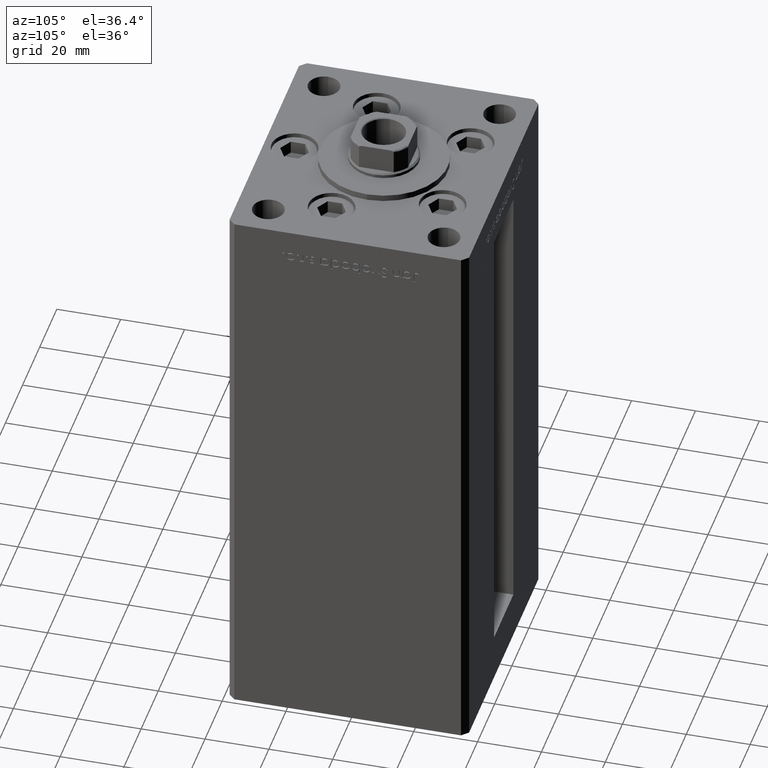
[diagram: clean part render]
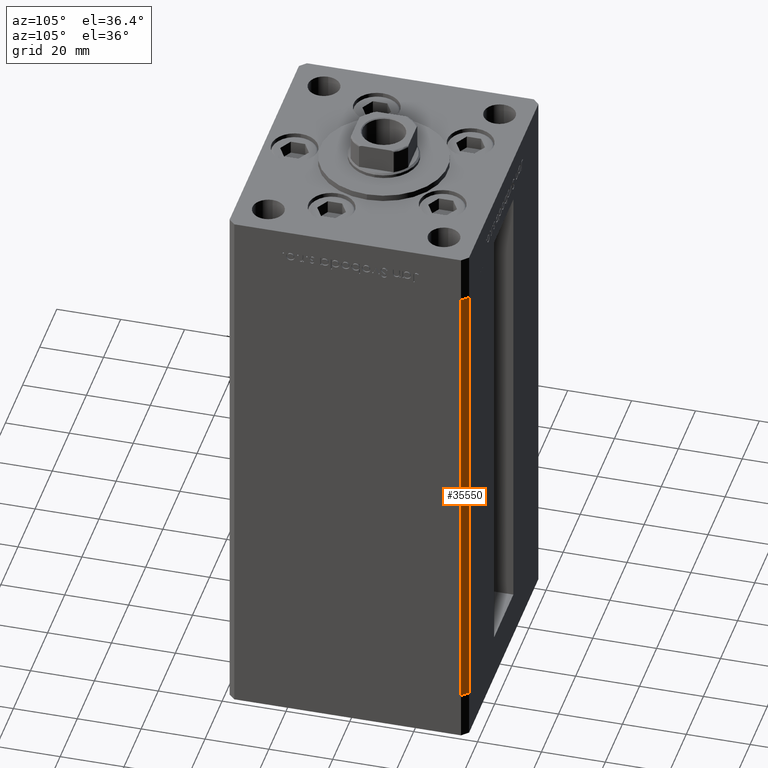
[diagram: same view with one face highlighted and labeled with its STEP entity id]
A machine part, auxiliary view. The second image highlights one B-rep face of the part: STEP entity #35550.
In plain terms, the highlighted planar face has unit normal (0.7071, 0.7071, 0).
Its self-contained STEP definition (entity closure, byte-faithful):
#259 = CARTESIAN_POINT ( 'NONE',  ( 40.50000000000000000, 37.50000000000000711, 148.5000000000000000 ) ) ;
#4159 = AXIS2_PLACEMENT_3D ( 'NONE', #38167, #4734, #6240 ) ;
#4734 = DIRECTION ( 'NONE',  ( 0.7071067811865451302, 0.7071067811865500152, -0.000000000000000000 ) ) ;
#5675 = CARTESIAN_POINT ( 'NONE',  ( 42.50000000000000711, 35.50000000000001421, 148.5000000000000000 ) ) ;
#5694 = VECTOR ( 'NONE', #44158, 1000.000000000000114 ) ;
#6240 = DIRECTION ( 'NONE',  ( -0.7071067811865500152, 0.7071067811865451302, 0.000000000000000000 ) ) ;
#6491 = PLANE ( 'NONE',  #4159 ) ;
#8367 = VERTEX_POINT ( 'NONE', #34943 ) ;
#12571 = EDGE_CURVE ( 'NONE', #25923, #8367, #19768, .T. ) ;
#13360 = LINE ( 'NONE', #25746, #34832 ) ;
#13678 = EDGE_CURVE ( 'NONE', #25923, #41197, #13360, .T. ) ;
#16040 = EDGE_LOOP ( 'NONE', ( #35107, #47351, #47617, #18214 ) ) ;
#18214 = ORIENTED_EDGE ( 'NONE', *, *, #33493, .T. ) ;
#19768 = LINE ( 'NONE', #259, #42362 ) ;
#20110 = VECTOR ( 'NONE', #42350, 1000.000000000000000 ) ;
#20999 = DIRECTION ( 'NONE',  ( 0.7071067811865500152, -0.7071067811865451302, 0.000000000000000000 ) ) ;
#25746 = CARTESIAN_POINT ( 'NONE',  ( 40.50000000000000000, 37.50000000000000711, 148.5000000000000000 ) ) ;
#25923 = VERTEX_POINT ( 'NONE', #30789 ) ;
#25978 = LINE ( 'NONE', #5675, #20110 ) ;
#28131 = CARTESIAN_POINT ( 'NONE',  ( 42.50000000000000711, 35.50000000000001421, 0.000000000000000000 ) ) ;
#28318 = CARTESIAN_POINT ( 'NONE',  ( 40.50000000000000000, 37.50000000000000711, 0.000000000000000000 ) ) ;
#30095 = EDGE_CURVE ( 'NONE', #8367, #42982, #48120, .T. ) ;
#30789 = CARTESIAN_POINT ( 'NONE',  ( 40.50000000000000000, 37.50000000000000711, 148.5000000000000000 ) ) ;
#33414 = CARTESIAN_POINT ( 'NONE',  ( 42.50000000000000711, 35.50000000000001421, 148.5000000000000000 ) ) ;
#33493 = EDGE_CURVE ( 'NONE', #41197, #42982, #25978, .T. ) ;
#33942 = FACE_OUTER_BOUND ( 'NONE', #16040, .T. ) ;
#34832 = VECTOR ( 'NONE', #20999, 1000.000000000000114 ) ;
#34943 = CARTESIAN_POINT ( 'NONE',  ( 40.50000000000000000, 37.50000000000000711, 0.000000000000000000 ) ) ;
#35107 = ORIENTED_EDGE ( 'NONE', *, *, #30095, .F. ) ;
#35550 = ADVANCED_FACE ( 'NONE', ( #33942 ), #6491, .T. ) ;
#38167 = CARTESIAN_POINT ( 'NONE',  ( 40.50000000000000000, 37.50000000000000711, 148.5000000000000000 ) ) ;
#39831 = DIRECTION ( 'NONE',  ( -0.000000000000000000, -0.000000000000000000, -1.000000000000000000 ) ) ;
#41197 = VERTEX_POINT ( 'NONE', #33414 ) ;
#42350 = DIRECTION ( 'NONE',  ( -0.000000000000000000, -0.000000000000000000, -1.000000000000000000 ) ) ;
#42362 = VECTOR ( 'NONE', #39831, 1000.000000000000000 ) ;
#42982 = VERTEX_POINT ( 'NONE', #28131 ) ;
#44158 = DIRECTION ( 'NONE',  ( 0.7071067811865500152, -0.7071067811865451302, 0.000000000000000000 ) ) ;
#47351 = ORIENTED_EDGE ( 'NONE', *, *, #12571, .F. ) ;
#47617 = ORIENTED_EDGE ( 'NONE', *, *, #13678, .T. ) ;
#48120 = LINE ( 'NONE', #28318, #5694 ) ;